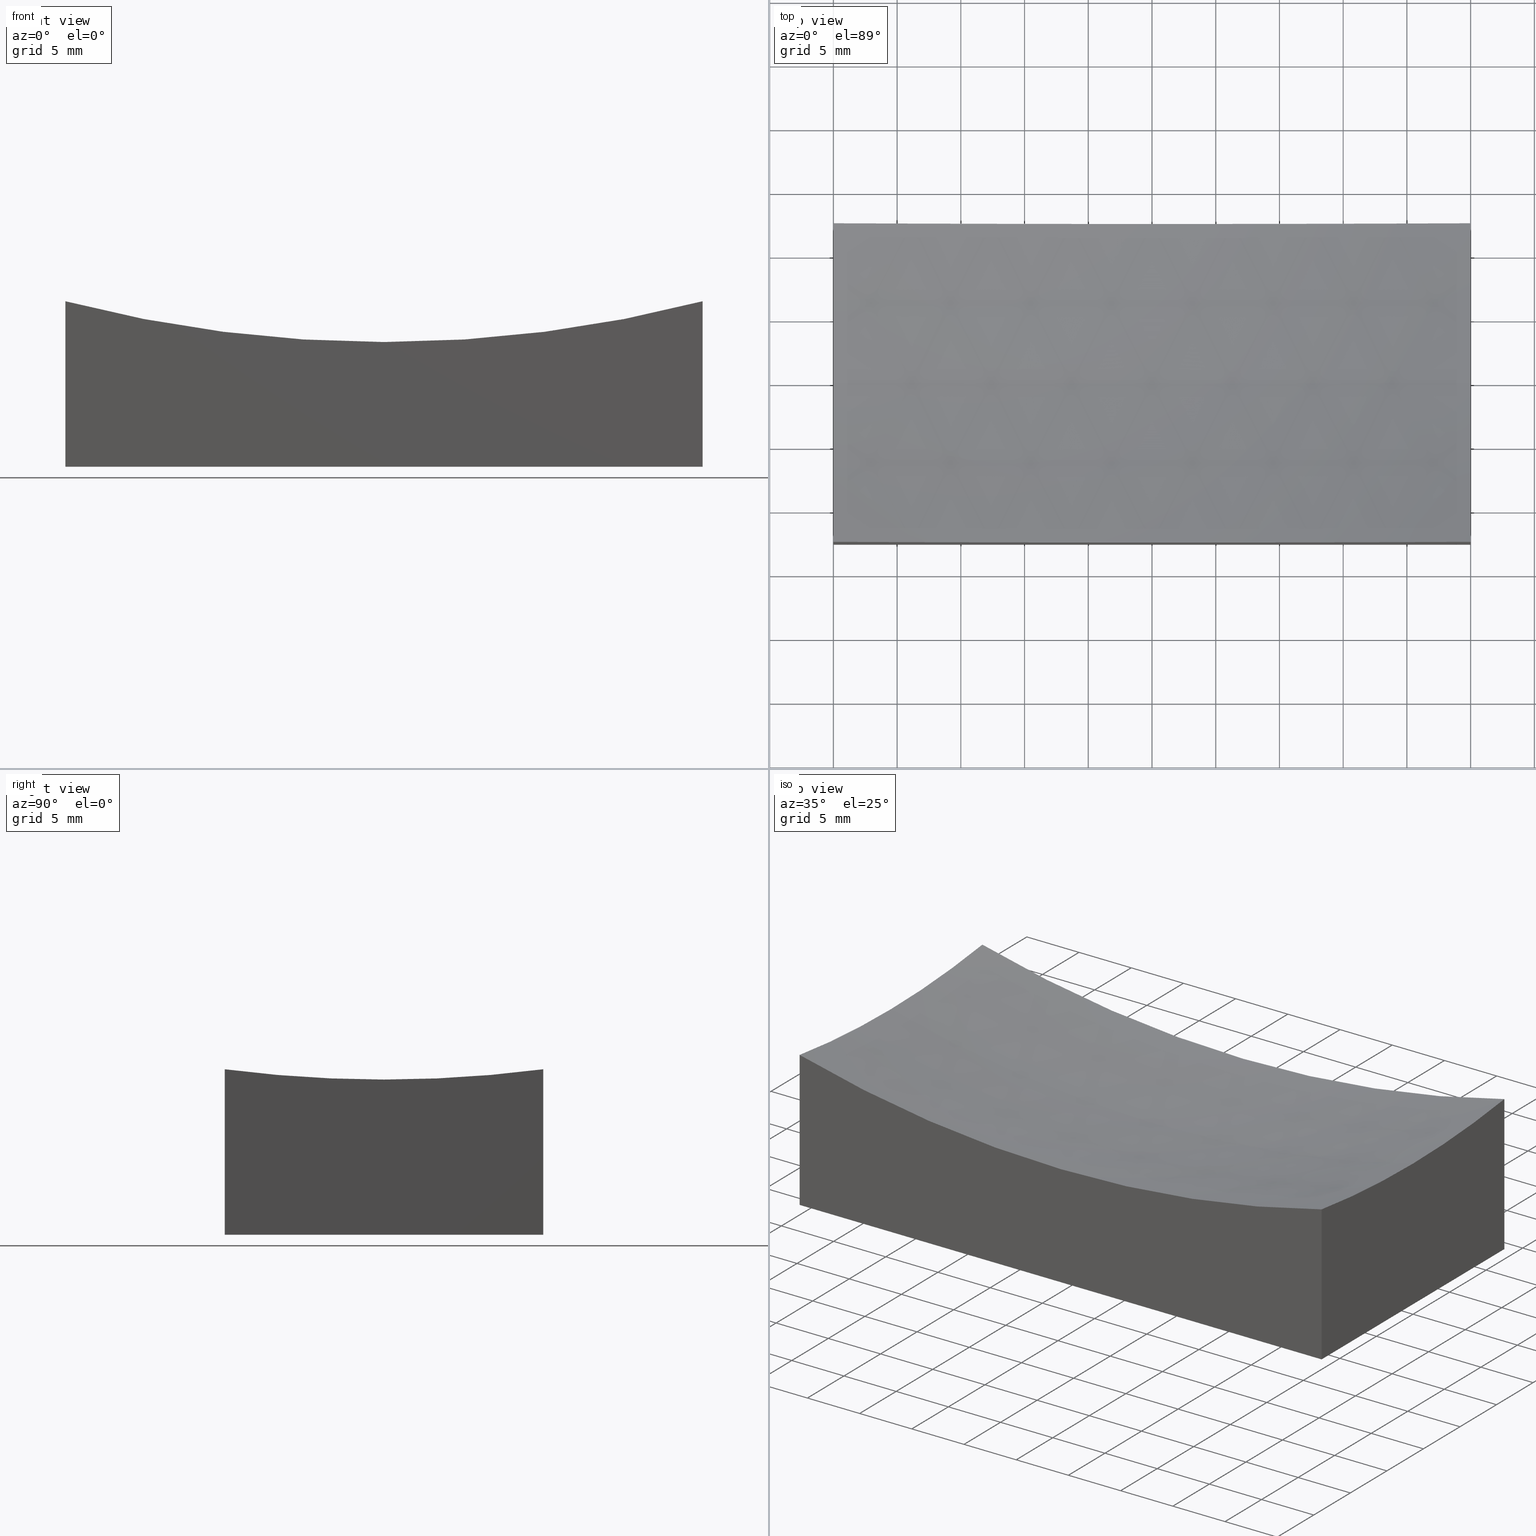
[diagram: canonical four-view strip — front | top / right | iso, engineering-drawing reading convention]
A machine part, canonical four-view strip (front | top / right | iso — engineering-drawing reading convention). The complete STEP part file that produces these views, byte-faithful:
ISO-10303-21;
HEADER;
FILE_DESCRIPTION (( 'STEP AP214' ),
    '1' );
FILE_NAME ('GM13-50x25-050.STEP',
    '2024-08-13T03:07:53',
    ( 'Windows User' ),
    ( 'P R C' ),
    'SwSTEP 2.0',
    'SolidWorks 2022',
    '' );
FILE_SCHEMA (( 'AUTOMOTIVE_DESIGN' ));
ENDSEC;

DATA;
#1 = AXIS2_PLACEMENT_3D ( 'NONE', #142, #218, #124 ) ;
#2 = DIRECTION ( 'NONE',  ( 1.000000000000000000, 0.000000000000000000, -1.387778780781445676E-16 ) ) ;
#3 = ADVANCED_FACE ( 'NONE', ( #204 ), #224, .F. ) ;
#4 = FILL_AREA_STYLE_COLOUR ( '', #83 ) ;
#5 = APPLICATION_CONTEXT ( 'automotive_design' ) ;
#6 = DIRECTION ( 'NONE',  ( 0.000000000000000000, 0.000000000000000000, 1.000000000000000000 ) ) ;
#7 =( NAMED_UNIT ( * ) PLANE_ANGLE_UNIT ( ) SI_UNIT ( $, .RADIAN. ) );
#8 = ADVANCED_FACE ( 'NONE', ( #187 ), #34, .F. ) ;
#9 = ORIENTED_EDGE ( 'NONE', *, *, #143, .T. ) ;
#10 = ORIENTED_EDGE ( 'NONE', *, *, #198, .F. ) ;
#11 = ORIENTED_EDGE ( 'NONE', *, *, #127, .T. ) ;
#12 = VECTOR ( 'NONE', #156, 1000.000000000000000 ) ;
#13 = ORIENTED_EDGE ( 'NONE', *, *, #17, .T. ) ;
#14 = ORIENTED_EDGE ( 'NONE', *, *, #240, .F. ) ;
#15 = CARTESIAN_POINT ( 'NONE',  ( -25.00000000000000000, -3.061616997868383043E-15, 12.17541634481457358 ) ) ;
#16 = CARTESIAN_POINT ( 'NONE',  ( 25.00000000000000355, 12.50000000000000000, 15.00000000000000000 ) ) ;
#17 = EDGE_CURVE ( 'NONE', #110, #50, #98, .T. ) ;
#18 = FACE_OUTER_BOUND ( 'NONE', #29, .T. ) ;
#19 = DIRECTION ( 'NONE',  ( 1.224646799147353207E-16, -1.000000000000000000, -1.504538773194923304E-32 ) ) ;
#20 = MECHANICAL_DESIGN_GEOMETRIC_PRESENTATION_REPRESENTATION (  '', ( #221 ), #229 ) ;
#21 = CARTESIAN_POINT ( 'NONE',  ( -25.00000000000000000, 12.50000000000000000, 15.00000000000000000 ) ) ;
#22 = VECTOR ( 'NONE', #140, 1000.000000000000000 ) ;
#23 = CARTESIAN_POINT ( 'NONE',  ( 24.99999999999999645, -12.50000000000000000, 0.000000000000000000 ) ) ;
#24 = AXIS2_PLACEMENT_3D ( 'NONE', #176, #155, #118 ) ;
#25 = CARTESIAN_POINT ( 'NONE',  ( 25.00000000000000355, 12.50000000000000000, 12.98567815164238048 ) ) ;
#26 = DIRECTION ( 'NONE',  ( 0.000000000000000000, -1.000000000000000000, -0.000000000000000000 ) ) ;
#27 = EDGE_CURVE ( 'NONE', #189, #130, #96, .T. ) ;
#28 = AXIS2_PLACEMENT_3D ( 'NONE', #40, #237, #43 ) ;
#29 = EDGE_LOOP ( 'NONE', ( #69, #31, #227, #245 ) ) ;
#30 = DIRECTION ( 'NONE',  ( -1.387778780781445676E-16, 1.000000000000000000, 0.000000000000000000 ) ) ;
#31 = ORIENTED_EDGE ( 'NONE', *, *, #240, .T. ) ;
#32 = ORIENTED_EDGE ( 'NONE', *, *, #121, .F. ) ;
#33 = ORIENTED_EDGE ( 'NONE', *, *, #109, .T. ) ;
#34 = PLANE ( 'NONE',  #92 ) ;
#35 = DIRECTION ( 'NONE',  ( 1.000000000000000000, 0.000000000000000000, 0.000000000000000000 ) ) ;
#36 = PLANE ( 'NONE',  #104 ) ;
#37 = FILL_AREA_STYLE ('',( #137 ) ) ;
#38 = SURFACE_SIDE_STYLE ('',( #216 ) ) ;
#39 = FACE_OUTER_BOUND ( 'NONE', #207, .T. ) ;
#40 = CARTESIAN_POINT ( 'NONE',  ( 25.00000000000000355, 12.50000000000000000, 15.00000000000000000 ) ) ;
#41 = CARTESIAN_POINT ( 'NONE',  ( 24.99999999999999645, -12.50000000000000000, 15.00000000000000000 ) ) ;
#42 = AXIS2_PLACEMENT_3D ( 'NONE', #55, #209, #214 ) ;
#43 = DIRECTION ( 'NONE',  ( -2.775557561562891351E-16, -1.000000000000000000, 0.000000000000000000 ) ) ;
#44 = ADVANCED_FACE ( 'NONE', ( #18 ), #116, .F. ) ;
#45 = ORIENTED_EDGE ( 'NONE', *, *, #88, .F. ) ;
#46 = ORIENTED_EDGE ( 'NONE', *, *, #127, .F. ) ;
#47 = VERTEX_POINT ( 'NONE', #15 ) ;
#48 = APPLICATION_PROTOCOL_DEFINITION ( 'draft international standard', 'automotive_design', 1998, #5 ) ;
#49 = VERTEX_POINT ( 'NONE', #94 ) ;
#50 = VERTEX_POINT ( 'NONE', #93 ) ;
#51 = CARTESIAN_POINT ( 'NONE',  ( 0.000000000000000000, 0.000000000000000000, 0.000000000000000000 ) ) ;
#52 =( GEOMETRIC_REPRESENTATION_CONTEXT ( 3 ) GLOBAL_UNCERTAINTY_ASSIGNED_CONTEXT ( ( #117 ) ) GLOBAL_UNIT_ASSIGNED_CONTEXT ( ( #183, #7, #80 ) ) REPRESENTATION_CONTEXT ( 'NONE', 'WORKASPACE' ) );
#53 = CIRCLE ( 'NONE', #85, 96.82458365518543530 ) ;
#54 = DIRECTION ( 'NONE',  ( 1.387778780781445676E-16, -1.000000000000000000, 0.000000000000000000 ) ) ;
#55 = CARTESIAN_POINT ( 'NONE',  ( 25.00000000000000000, -6.938893903907225222E-15, 109.0000000000000000 ) ) ;
#56 = DIRECTION ( 'NONE',  ( 1.000000000000000000, 1.224646799147353207E-16, 0.000000000000000000 ) ) ;
#57 = LINE ( 'NONE', #62, #59 ) ;
#58 = CLOSED_SHELL ( 'NONE', ( #217, #3, #44, #164, #8, #99, #77 ) ) ;
#59 = VECTOR ( 'NONE', #126, 1000.000000000000000 ) ;
#60 = EDGE_CURVE ( 'NONE', #47, #205, #182, .T. ) ;
#61 = DIRECTION ( 'NONE',  ( 0.000000000000000000, 0.000000000000000000, -1.000000000000000000 ) ) ;
#62 = CARTESIAN_POINT ( 'NONE',  ( -24.99999999999999645, -12.50000000000000000, 0.000000000000000000 ) ) ;
#63 = DIRECTION ( 'NONE',  ( -1.000000000000000000, -0.000000000000000000, -0.000000000000000000 ) ) ;
#64 = DIRECTION ( 'NONE',  ( 1.000000000000000000, 0.000000000000000000, 0.000000000000000000 ) ) ;
#65 = ORIENTED_EDGE ( 'NONE', *, *, #163, .T. ) ;
#66 = ORIENTED_EDGE ( 'NONE', *, *, #121, .T. ) ;
#67 = VECTOR ( 'NONE', #195, 1000.000000000000000 ) ;
#68 = VERTEX_POINT ( 'NONE', #194 ) ;
#69 = ORIENTED_EDGE ( 'NONE', *, *, #143, .F. ) ;
#70 = EDGE_CURVE ( 'NONE', #238, #130, #74, .T. ) ;
#71 = DIRECTION ( 'NONE',  ( 1.000000000000000000, -2.775557561562891351E-16, -0.000000000000000000 ) ) ;
#72 = CARTESIAN_POINT ( 'NONE',  ( 1.224646799147353375E-14, 0.000000000000000000, 109.0000000000000000 ) ) ;
#73 = MECHANICAL_DESIGN_GEOMETRIC_PRESENTATION_REPRESENTATION (  '', ( #244 ), #152 ) ;
#74 = LINE ( 'NONE', #134, #12 ) ;
#75 = FACE_OUTER_BOUND ( 'NONE', #81, .T. ) ;
#76 = CARTESIAN_POINT ( 'NONE',  ( -25.00000000000000000, 12.50000000000000000, 12.98567815164238048 ) ) ;
#77 = ADVANCED_FACE ( 'NONE', ( #249 ), #178, .F. ) ;
#78 = AXIS2_PLACEMENT_3D ( 'NONE', #201, #123, #61 ) ;
#79 = CARTESIAN_POINT ( 'NONE',  ( 1.224646799147353375E-14, 0.000000000000000000, 109.0000000000000000 ) ) ;
#80 =( NAMED_UNIT ( * ) SI_UNIT ( $, .STERADIAN. ) SOLID_ANGLE_UNIT ( ) );
#81 = EDGE_LOOP ( 'NONE', ( #131, #169, #246, #10 ) ) ;
#82 = DIRECTION ( 'NONE',  ( 1.000000000000000000, 1.387778780781445676E-16, -0.000000000000000000 ) ) ;
#83 = COLOUR_RGB ( '',1.000000000000000000, 1.000000000000000000, 1.000000000000000000 ) ;
#84 = ORIENTED_EDGE ( 'NONE', *, *, #70, .T. ) ;
#85 = AXIS2_PLACEMENT_3D ( 'NONE', #230, #71, #136 ) ;
#86 =( NAMED_UNIT ( * ) SI_UNIT ( $, .STERADIAN. ) SOLID_ANGLE_UNIT ( ) );
#87 = EDGE_LOOP ( 'NONE', ( #146, #166, #150, #226 ) ) ;
#88 = EDGE_CURVE ( 'NONE', #68, #225, #53, .T. ) ;
#89 = EDGE_LOOP ( 'NONE', ( #242, #66, #172, #11, #65 ) ) ;
#90 = EDGE_CURVE ( 'NONE', #145, #47, #231, .T. ) ;
#91 = PRESENTATION_STYLE_ASSIGNMENT (( #190 ) ) ;
#92 = AXIS2_PLACEMENT_3D ( 'NONE', #133, #154, #191 ) ;
#93 = CARTESIAN_POINT ( 'NONE',  ( -24.99999999999999645, -12.50000000000000000, 0.000000000000000000 ) ) ;
#94 = CARTESIAN_POINT ( 'NONE',  ( 6.084210576605691869E-15, 0.000000000000000000, 8.999999999999994671 ) ) ;
#95 = APPLICATION_CONTEXT ( 'automotive_design' ) ;
#96 = LINE ( 'NONE', #16, #222 ) ;
#97 = PRODUCT_DEFINITION_FORMATION_WITH_SPECIFIED_SOURCE ( '�κ�', '', #100, .NOT_KNOWN. ) ;
#98 = LINE ( 'NONE', #173, #235 ) ;
#99 = ADVANCED_FACE ( 'NONE', ( #75 ), #36, .F. ) ;
#100 = PRODUCT ( 'GM13-50x25-050', 'GM13-50x25-050', '', ( #241 ) ) ;
#101 = VECTOR ( 'NONE', #197, 1000.000000000000000 ) ;
#102 = UNCERTAINTY_MEASURE_WITH_UNIT (LENGTH_MEASURE( 1.000000000000000082E-05 ), #202, 'distance_accuracy_value', 'NONE');
#103 = CARTESIAN_POINT ( 'NONE',  ( 1.224646799147353375E-14, 0.000000000000000000, 109.0000000000000000 ) ) ;
#104 = AXIS2_PLACEMENT_3D ( 'NONE', #51, #232, #35 ) ;
#105 = DIRECTION ( 'NONE',  ( 1.000000000000000000, 0.000000000000000000, -1.387778780781445676E-16 ) ) ;
#106 = LINE ( 'NONE', #181, #175 ) ;
#107 = SURFACE_SIDE_STYLE ('',( #234 ) ) ;
#108 = ORIENTED_EDGE ( 'NONE', *, *, #90, .F. ) ;
#109 = EDGE_CURVE ( 'NONE', #145, #110, #233, .T. ) ;
#110 = VERTEX_POINT ( 'NONE', #248 ) ;
#111 = ORIENTED_EDGE ( 'NONE', *, *, #88, .T. ) ;
#112 = AXIS2_PLACEMENT_3D ( 'NONE', #72, #211, #2 ) ;
#113 =( NAMED_UNIT ( * ) PLANE_ANGLE_UNIT ( ) SI_UNIT ( $, .RADIAN. ) );
#114 = CIRCLE ( 'NONE', #1, 99.21567416492214875 ) ;
#115 = ORIENTED_EDGE ( 'NONE', *, *, #60, .F. ) ;
#116 = PLANE ( 'NONE',  #200 ) ;
#117 = UNCERTAINTY_MEASURE_WITH_UNIT (LENGTH_MEASURE( 1.000000000000000082E-05 ), #183, 'distance_accuracy_value', 'NONE');
#118 = DIRECTION ( 'NONE',  ( -1.433291761649752693E-16, 1.000000000000000000, 0.000000000000000000 ) ) ;
#119 = DIRECTION ( 'NONE',  ( -1.433291761649752693E-16, 1.000000000000000000, 0.000000000000000000 ) ) ;
#120 = DIRECTION ( 'NONE',  ( 0.000000000000000000, -0.000000000000000000, 1.000000000000000000 ) ) ;
#121 = EDGE_CURVE ( 'NONE', #47, #49, #125, .T. ) ;
#122 = LINE ( 'NONE', #184, #22 ) ;
#123 = DIRECTION ( 'NONE',  ( -0.000000000000000000, 1.000000000000000000, -0.000000000000000000 ) ) ;
#124 = DIRECTION ( 'NONE',  ( 3.552713678800500929E-15, 0.000000000000000000, 1.000000000000000000 ) ) ;
#125 = CIRCLE ( 'NONE', #212, 100.0000000000000000 ) ;
#126 = DIRECTION ( 'NONE',  ( 1.000000000000000000, 0.000000000000000000, 0.000000000000000000 ) ) ;
#127 = EDGE_CURVE ( 'NONE', #225, #189, #135, .T. ) ;
#128 = EDGE_LOOP ( 'NONE', ( #108, #33, #13, #14, #115 ) ) ;
#129 = MANIFOLD_SOLID_BREP ( '�г�-��ת1', #58 ) ;
#130 = VERTEX_POINT ( 'NONE', #161 ) ;
#131 = ORIENTED_EDGE ( 'NONE', *, *, #17, .F. ) ;
#132 = CIRCLE ( 'NONE', #165, 100.0000000000000142 ) ;
#133 = CARTESIAN_POINT ( 'NONE',  ( -25.00000000000000000, 12.50000000000000000, 15.00000000000000000 ) ) ;
#134 = CARTESIAN_POINT ( 'NONE',  ( 25.00000000000000355, 12.50000000000000000, 0.000000000000000000 ) ) ;
#135 = CIRCLE ( 'NONE', #42, 96.82458365518543530 ) ;
#136 = DIRECTION ( 'NONE',  ( -2.866583523299504894E-16, -1.000000000000000000, 0.000000000000000000 ) ) ;
#137 = FILL_AREA_STYLE_COLOUR ( '', #147 ) ;
#138 = EDGE_CURVE ( 'NONE', #68, #238, #139, .T. ) ;
#139 = LINE ( 'NONE', #41, #101 ) ;
#140 = DIRECTION ( 'NONE',  ( -0.000000000000000000, -0.000000000000000000, -1.000000000000000000 ) ) ;
#141 = DIRECTION ( 'NONE',  ( 0.000000000000000000, 1.000000000000000000, -0.000000000000000000 ) ) ;
#142 = CARTESIAN_POINT ( 'NONE',  ( 1.224646799147353375E-14, -12.49999999999999645, 109.0000000000000000 ) ) ;
#143 = EDGE_CURVE ( 'NONE', #205, #68, #114, .T. ) ;
#144 = SURFACE_STYLE_USAGE ( .BOTH. , #107 ) ;
#145 = VERTEX_POINT ( 'NONE', #76 ) ;
#146 = ORIENTED_EDGE ( 'NONE', *, *, #163, .F. ) ;
#147 = COLOUR_RGB ( '',1.000000000000000000, 1.000000000000000000, 1.000000000000000000 ) ;
#148 = DIRECTION ( 'NONE',  ( 0.000000000000000000, 0.000000000000000000, 1.000000000000000000 ) ) ;
#149 = ORIENTED_EDGE ( 'NONE', *, *, #138, .T. ) ;
#150 = ORIENTED_EDGE ( 'NONE', *, *, #174, .T. ) ;
#151 =( LENGTH_UNIT ( ) NAMED_UNIT ( * ) SI_UNIT ( .MILLI., .METRE. ) );
#152 =( GEOMETRIC_REPRESENTATION_CONTEXT ( 3 ) GLOBAL_UNCERTAINTY_ASSIGNED_CONTEXT ( ( #210 ) ) GLOBAL_UNIT_ASSIGNED_CONTEXT ( ( #151, #160, #236 ) ) REPRESENTATION_CONTEXT ( 'NONE', 'WORKASPACE' ) );
#153 = EDGE_CURVE ( 'NONE', #225, #49, #132, .T. ) ;
#154 = DIRECTION ( 'NONE',  ( 0.000000000000000000, -1.000000000000000000, 0.000000000000000000 ) ) ;
#155 = DIRECTION ( 'NONE',  ( -1.000000000000000000, -1.387778780781445676E-16, 0.000000000000000000 ) ) ;
#156 = DIRECTION ( 'NONE',  ( 2.775557561562891351E-16, 1.000000000000000000, -0.000000000000000000 ) ) ;
#157 = CARTESIAN_POINT ( 'NONE',  ( 1.224646799147353375E-14, 0.000000000000000000, 109.0000000000000000 ) ) ;
#158 = FILL_AREA_STYLE ('',( #4 ) ) ;
#159 = PRODUCT_DEFINITION_CONTEXT ( 'detailed design', #5, 'design' ) ;
#160 =( NAMED_UNIT ( * ) PLANE_ANGLE_UNIT ( ) SI_UNIT ( $, .RADIAN. ) );
#161 = CARTESIAN_POINT ( 'NONE',  ( 25.00000000000000355, 12.50000000000000000, 0.000000000000000000 ) ) ;
#162 = FACE_OUTER_BOUND ( 'NONE', #89, .T. ) ;
#163 = EDGE_CURVE ( 'NONE', #189, #145, #192, .T. ) ;
#164 = ADVANCED_FACE ( 'NONE', ( #39 ), #219, .F. ) ;
#165 = AXIS2_PLACEMENT_3D ( 'NONE', #79, #141, #6 ) ;
#166 = ORIENTED_EDGE ( 'NONE', *, *, #27, .T. ) ;
#167 = ORIENTED_EDGE ( 'NONE', *, *, #27, .F. ) ;
#168 = PRESENTATION_STYLE_ASSIGNMENT (( #144 ) ) ;
#169 = ORIENTED_EDGE ( 'NONE', *, *, #174, .F. ) ;
#170 = PRESENTATION_LAYER_ASSIGNMENT (  '', '', ( #244 ) ) ;
#171 = ORIENTED_EDGE ( 'NONE', *, *, #153, .T. ) ;
#172 = ORIENTED_EDGE ( 'NONE', *, *, #153, .F. ) ;
#173 = CARTESIAN_POINT ( 'NONE',  ( -25.00000000000000000, 12.50000000000000000, 0.000000000000000000 ) ) ;
#174 = EDGE_CURVE ( 'NONE', #130, #110, #106, .T. ) ;
#175 = VECTOR ( 'NONE', #63, 1000.000000000000000 ) ;
#176 = CARTESIAN_POINT ( 'NONE',  ( -25.00000000000000000, -3.469446951953616555E-15, 109.0000000000000000 ) ) ;
#177 = DIRECTION ( 'NONE',  ( 0.000000000000000000, 1.000000000000000000, 0.000000000000000000 ) ) ;
#178 = SPHERICAL_SURFACE ( 'NONE', #112, 100.0000000000000000 ) ;
#179 = ADVANCED_BREP_SHAPE_REPRESENTATION ( 'GM13-50x25-050', ( #129, #206 ), #52 ) ;
#180 = APPLICATION_PROTOCOL_DEFINITION ( 'draft international standard', 'automotive_design', 1998, #95 ) ;
#181 = CARTESIAN_POINT ( 'NONE',  ( -25.00000000000000000, 12.50000000000000000, 0.000000000000000000 ) ) ;
#182 = CIRCLE ( 'NONE', #24, 96.82458365518542109 ) ;
#183 =( LENGTH_UNIT ( ) NAMED_UNIT ( * ) SI_UNIT ( .MILLI., .METRE. ) );
#184 = CARTESIAN_POINT ( 'NONE',  ( -24.99999999999999645, -12.50000000000000000, 15.00000000000000000 ) ) ;
#185 = SHAPE_DEFINITION_REPRESENTATION ( #193, #179 ) ;
#186 = CARTESIAN_POINT ( 'NONE',  ( -25.00000000000000000, 12.50000000000000000, 15.00000000000000000 ) ) ;
#187 = FACE_OUTER_BOUND ( 'NONE', #87, .T. ) ;
#188 = AXIS2_PLACEMENT_3D ( 'NONE', #196, #213, #119 ) ;
#189 = VERTEX_POINT ( 'NONE', #25 ) ;
#190 = SURFACE_STYLE_USAGE ( .BOTH. , #38 ) ;
#191 = DIRECTION ( 'NONE',  ( 0.000000000000000000, -0.000000000000000000, -1.000000000000000000 ) ) ;
#192 = CIRCLE ( 'NONE', #78, 99.21567416492216296 ) ;
#193 = PRODUCT_DEFINITION_SHAPE ( 'NONE', 'NONE',  #215 ) ;
#194 = CARTESIAN_POINT ( 'NONE',  ( 24.99999999999999645, -12.50000000000000000, 12.98567815164238048 ) ) ;
#195 = DIRECTION ( 'NONE',  ( -0.000000000000000000, -0.000000000000000000, -1.000000000000000000 ) ) ;
#196 = CARTESIAN_POINT ( 'NONE',  ( -25.00000000000000000, -3.469446951953616555E-15, 109.0000000000000000 ) ) ;
#197 = DIRECTION ( 'NONE',  ( -0.000000000000000000, -0.000000000000000000, -1.000000000000000000 ) ) ;
#198 = EDGE_CURVE ( 'NONE', #50, #238, #57, .T. ) ;
#199 = SPHERICAL_SURFACE ( 'NONE', #239, 100.0000000000000000 ) ;
#200 = AXIS2_PLACEMENT_3D ( 'NONE', #228, #177, #120 ) ;
#201 = CARTESIAN_POINT ( 'NONE',  ( 1.224646799147353375E-14, 12.50000000000000000, 109.0000000000000000 ) ) ;
#202 =( LENGTH_UNIT ( ) NAMED_UNIT ( * ) SI_UNIT ( .MILLI., .METRE. ) );
#203 = AXIS2_PLACEMENT_3D ( 'NONE', #186, #82, #30 ) ;
#204 = FACE_OUTER_BOUND ( 'NONE', #128, .T. ) ;
#205 = VERTEX_POINT ( 'NONE', #220 ) ;
#206 = AXIS2_PLACEMENT_3D ( 'NONE', #243, #148, #64 ) ;
#207 = EDGE_LOOP ( 'NONE', ( #45, #149, #84, #167, #46 ) ) ;
#208 = ORIENTED_EDGE ( 'NONE', *, *, #60, .T. ) ;
#209 = DIRECTION ( 'NONE',  ( 1.000000000000000000, -2.775557561562891351E-16, -0.000000000000000000 ) ) ;
#210 = UNCERTAINTY_MEASURE_WITH_UNIT (LENGTH_MEASURE( 1.000000000000000082E-05 ), #151, 'distance_accuracy_value', 'NONE');
#211 = DIRECTION ( 'NONE',  ( 0.000000000000000000, -1.000000000000000000, -0.000000000000000000 ) ) ;
#212 = AXIS2_PLACEMENT_3D ( 'NONE', #157, #19, #56 ) ;
#213 = DIRECTION ( 'NONE',  ( -1.000000000000000000, -1.387778780781445676E-16, 0.000000000000000000 ) ) ;
#214 = DIRECTION ( 'NONE',  ( -2.866583523299504894E-16, -1.000000000000000000, 0.000000000000000000 ) ) ;
#215 = PRODUCT_DEFINITION ( 'δ֪', '', #97, #159 ) ;
#216 = SURFACE_STYLE_FILL_AREA ( #37 ) ;
#217 = ADVANCED_FACE ( 'NONE', ( #162 ), #199, .F. ) ;
#218 = DIRECTION ( 'NONE',  ( -0.000000000000000000, -1.000000000000000000, -0.000000000000000000 ) ) ;
#219 = PLANE ( 'NONE',  #28 ) ;
#220 = CARTESIAN_POINT ( 'NONE',  ( -24.99999999999998934, -12.49999999999999645, 12.98567815164238048 ) ) ;
#221 = STYLED_ITEM ( 'NONE', ( #168 ), #179 ) ;
#222 = VECTOR ( 'NONE', #251, 1000.000000000000000 ) ;
#223 = CARTESIAN_POINT ( 'NONE',  ( 25.00000000000000000, 3.851859888774471706E-31, 12.17541634481456647 ) ) ;
#224 = PLANE ( 'NONE',  #203 ) ;
#225 = VERTEX_POINT ( 'NONE', #223 ) ;
#226 = ORIENTED_EDGE ( 'NONE', *, *, #109, .F. ) ;
#227 = ORIENTED_EDGE ( 'NONE', *, *, #198, .T. ) ;
#228 = CARTESIAN_POINT ( 'NONE',  ( -24.99999999999999645, -12.50000000000000000, 15.00000000000000000 ) ) ;
#229 =( GEOMETRIC_REPRESENTATION_CONTEXT ( 3 ) GLOBAL_UNCERTAINTY_ASSIGNED_CONTEXT ( ( #102 ) ) GLOBAL_UNIT_ASSIGNED_CONTEXT ( ( #202, #113, #86 ) ) REPRESENTATION_CONTEXT ( 'NONE', 'WORKASPACE' ) );
#230 = CARTESIAN_POINT ( 'NONE',  ( 25.00000000000000000, -6.938893903907225222E-15, 109.0000000000000000 ) ) ;
#231 = CIRCLE ( 'NONE', #188, 96.82458365518542109 ) ;
#232 = DIRECTION ( 'NONE',  ( -0.000000000000000000, 0.000000000000000000, 1.000000000000000000 ) ) ;
#233 = LINE ( 'NONE', #21, #67 ) ;
#234 = SURFACE_STYLE_FILL_AREA ( #158 ) ;
#235 = VECTOR ( 'NONE', #54, 1000.000000000000000 ) ;
#236 =( NAMED_UNIT ( * ) SI_UNIT ( $, .STERADIAN. ) SOLID_ANGLE_UNIT ( ) );
#237 = DIRECTION ( 'NONE',  ( -1.000000000000000000, 2.775557561562891351E-16, 0.000000000000000000 ) ) ;
#238 = VERTEX_POINT ( 'NONE', #23 ) ;
#239 = AXIS2_PLACEMENT_3D ( 'NONE', #103, #26, #105 ) ;
#240 = EDGE_CURVE ( 'NONE', #205, #50, #122, .T. ) ;
#241 = PRODUCT_CONTEXT ( 'NONE', #95, 'mechanical' ) ;
#242 = ORIENTED_EDGE ( 'NONE', *, *, #90, .T. ) ;
#243 = CARTESIAN_POINT ( 'NONE',  ( 0.000000000000000000, 0.000000000000000000, 0.000000000000000000 ) ) ;
#244 = STYLED_ITEM ( 'NONE', ( #91 ), #129 ) ;
#245 = ORIENTED_EDGE ( 'NONE', *, *, #138, .F. ) ;
#246 = ORIENTED_EDGE ( 'NONE', *, *, #70, .F. ) ;
#247 = EDGE_LOOP ( 'NONE', ( #32, #208, #9, #111, #171 ) ) ;
#248 = CARTESIAN_POINT ( 'NONE',  ( -25.00000000000000000, 12.50000000000000000, 0.000000000000000000 ) ) ;
#249 = FACE_OUTER_BOUND ( 'NONE', #247, .T. ) ;
#250 = PRESENTATION_LAYER_ASSIGNMENT (  '', '', ( #221 ) ) ;
#251 = DIRECTION ( 'NONE',  ( -0.000000000000000000, -0.000000000000000000, -1.000000000000000000 ) ) ;
#252 = PRODUCT_RELATED_PRODUCT_CATEGORY ( 'part', '', ( #100 ) ) ;
ENDSEC;
END-ISO-10303-21;
